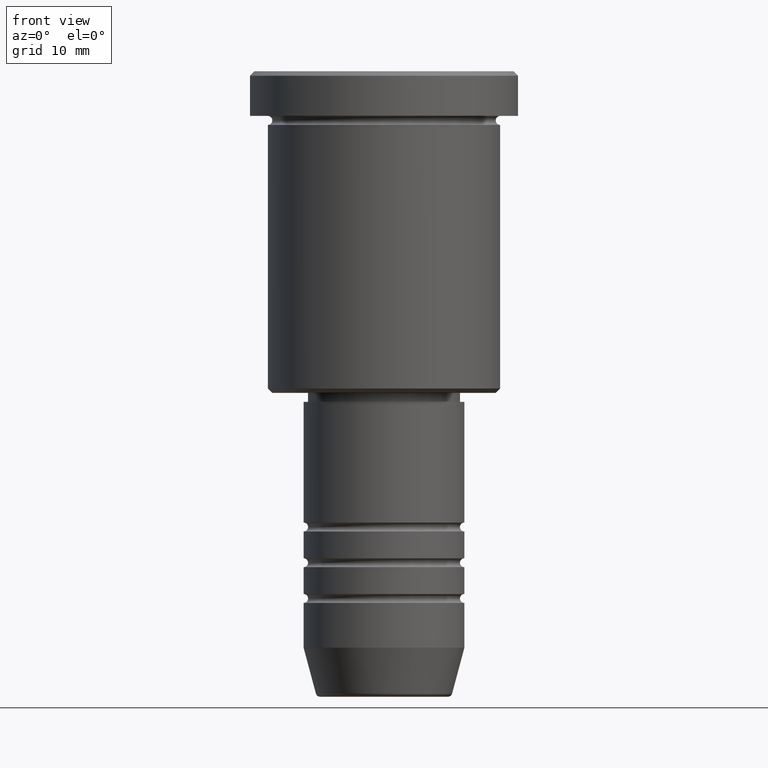
[diagram: clean part render]
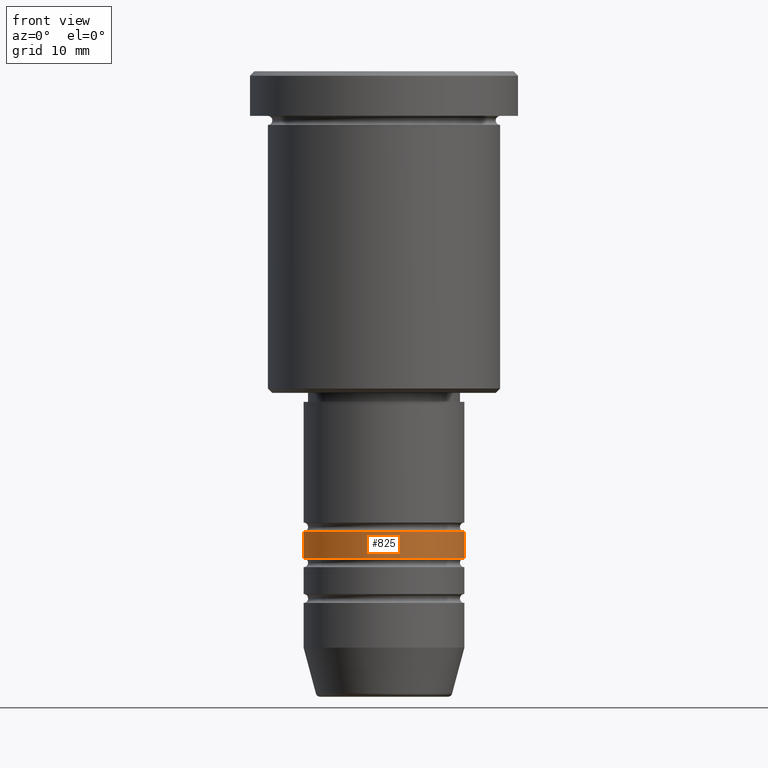
[diagram: same view with one face highlighted and labeled with its STEP entity id]
A machine part, front view. The second image highlights one B-rep face of the part: STEP entity #825.
In plain terms, the highlighted cylindrical surface (partial cylindrical patch) has radius 9 mm, axis along (-0, -0, 1).
Its self-contained STEP definition (entity closure, byte-faithful):
#7 = ORIENTED_EDGE ( 'NONE', *, *, #265, .T. ) ;
#30 = DIRECTION ( 'NONE',  ( 1.000000000000000000, 0.000000000000000000, 0.000000000000000000 ) ) ;
#38 = CARTESIAN_POINT ( 'NONE',  ( -9.000000000000000000, 1.102182119232617714E-15, -51.50000000000000000 ) ) ;
#97 = AXIS2_PLACEMENT_3D ( 'NONE', #786, #1151, #1164 ) ;
#103 = CARTESIAN_POINT ( 'NONE',  ( 9.000000000000001776, 0.000000000000000000, 0.000000000000000000 ) ) ;
#129 = EDGE_CURVE ( 'NONE', #398, #385, #411, .T. ) ;
#141 = VECTOR ( 'NONE', #739, 1000.000000000000000 ) ;
#215 = FACE_OUTER_BOUND ( 'NONE', #237, .T. ) ;
#237 = EDGE_LOOP ( 'NONE', ( #692, #757, #7, #495 ) ) ;
#242 = LINE ( 'NONE', #611, #485 ) ;
#265 = EDGE_CURVE ( 'NONE', #944, #385, #917, .T. ) ;
#310 = CARTESIAN_POINT ( 'NONE',  ( 9.000000000000000000, 0.000000000000000000, -51.50000000000000000 ) ) ;
#340 = AXIS2_PLACEMENT_3D ( 'NONE', #1061, #789, #710 ) ;
#385 = VERTEX_POINT ( 'NONE', #310 ) ;
#398 = VERTEX_POINT ( 'NONE', #38 ) ;
#411 = CIRCLE ( 'NONE', #97, 9.000000000000000000 ) ;
#413 = CYLINDRICAL_SURFACE ( 'NONE', #1076, 9.000000000000001776 ) ;
#485 = VECTOR ( 'NONE', #966, 1000.000000000000000 ) ;
#495 = ORIENTED_EDGE ( 'NONE', *, *, #129, .F. ) ;
#611 = CARTESIAN_POINT ( 'NONE',  ( -9.000000000000001776, 1.102182119232617911E-15, 0.000000000000000000 ) ) ;
#648 = EDGE_CURVE ( 'NONE', #1161, #398, #242, .T. ) ;
#677 = CIRCLE ( 'NONE', #340, 9.000000000000001776 ) ;
#692 = ORIENTED_EDGE ( 'NONE', *, *, #648, .F. ) ;
#710 = DIRECTION ( 'NONE',  ( 1.000000000000000000, 0.000000000000000000, 0.000000000000000000 ) ) ;
#739 = DIRECTION ( 'NONE',  ( -0.000000000000000000, -0.000000000000000000, 1.000000000000000000 ) ) ;
#757 = ORIENTED_EDGE ( 'NONE', *, *, #1044, .T. ) ;
#786 = CARTESIAN_POINT ( 'NONE',  ( 0.000000000000000000, 0.000000000000000000, -51.50000000000000000 ) ) ;
#789 = DIRECTION ( 'NONE',  ( -0.000000000000000000, -0.000000000000000000, 1.000000000000000000 ) ) ;
#825 = ADVANCED_FACE ( 'NONE', ( #215 ), #413, .T. ) ;
#881 = CARTESIAN_POINT ( 'NONE',  ( 9.000000000000001776, 0.000000000000000000, -54.49999999999999289 ) ) ;
#917 = LINE ( 'NONE', #103, #141 ) ;
#944 = VERTEX_POINT ( 'NONE', #881 ) ;
#947 = DIRECTION ( 'NONE',  ( -0.000000000000000000, -0.000000000000000000, 1.000000000000000000 ) ) ;
#966 = DIRECTION ( 'NONE',  ( -0.000000000000000000, -0.000000000000000000, 1.000000000000000000 ) ) ;
#988 = CARTESIAN_POINT ( 'NONE',  ( -9.000000000000001776, 1.102182119232617911E-15, -54.49999999999999289 ) ) ;
#1044 = EDGE_CURVE ( 'NONE', #1161, #944, #677, .T. ) ;
#1061 = CARTESIAN_POINT ( 'NONE',  ( 0.000000000000000000, 0.000000000000000000, -54.49999999999999289 ) ) ;
#1076 = AXIS2_PLACEMENT_3D ( 'NONE', #1124, #947, #30 ) ;
#1124 = CARTESIAN_POINT ( 'NONE',  ( 0.000000000000000000, 0.000000000000000000, 0.000000000000000000 ) ) ;
#1151 = DIRECTION ( 'NONE',  ( -0.000000000000000000, -0.000000000000000000, 1.000000000000000000 ) ) ;
#1161 = VERTEX_POINT ( 'NONE', #988 ) ;
#1164 = DIRECTION ( 'NONE',  ( 1.000000000000000000, 0.000000000000000000, 0.000000000000000000 ) ) ;